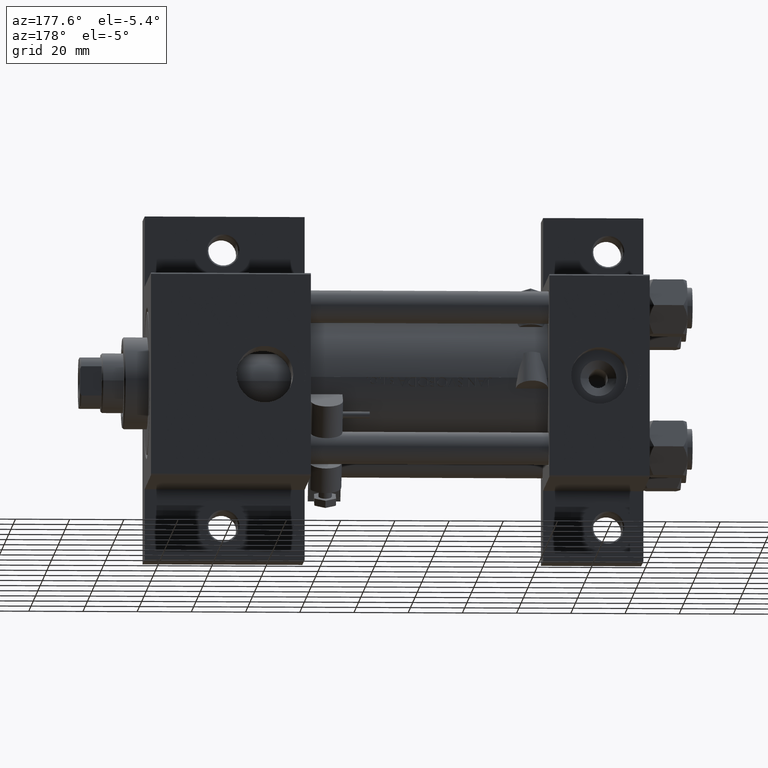
[diagram: clean part render]
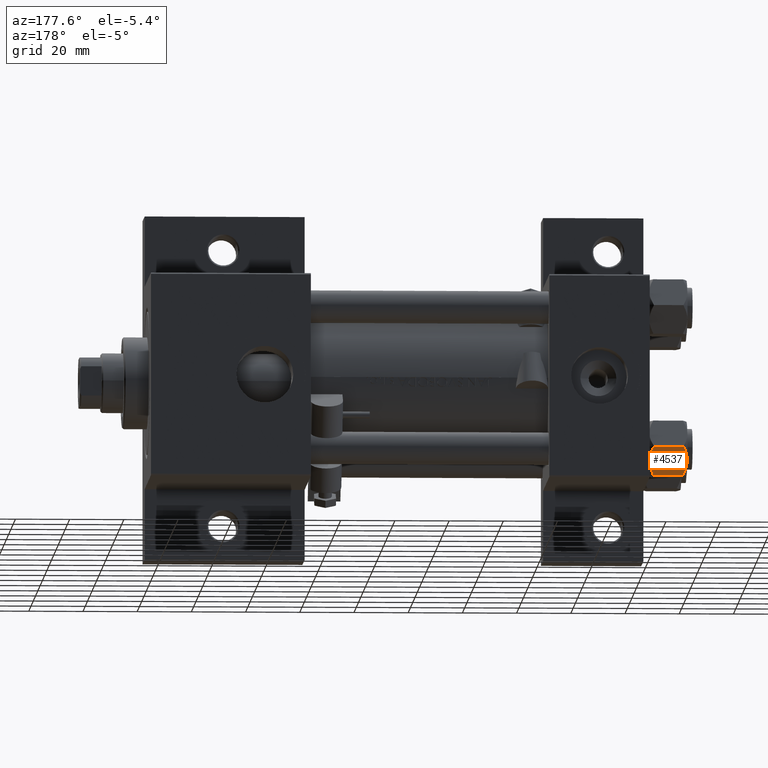
[diagram: same view with one face highlighted and labeled with its STEP entity id]
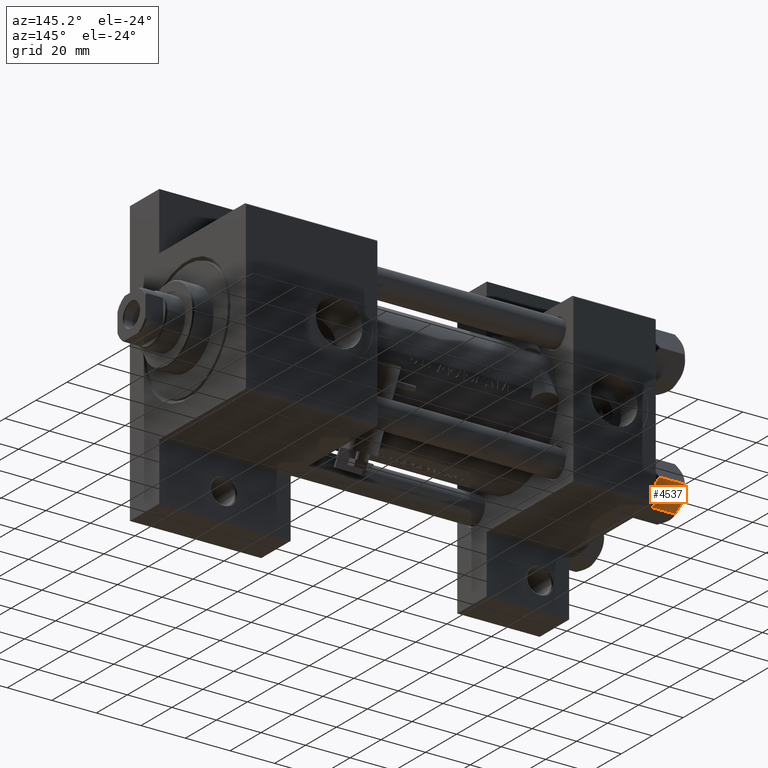
[diagram: same view with one face highlighted and labeled with its STEP entity id]
A machine part, auxiliary view. The second image highlights one B-rep face of the part: STEP entity #4537.
A second angle (auxiliary view) of the same face is appended — the face is thin or edge-on in the first view.
In plain terms, the highlighted planar face has unit normal (0, -0.866, 0.5).
Its self-contained STEP definition (entity closure, byte-faithful):
#942 = VERTEX_POINT ( 'NONE', #43391 ) ;
#1044 = VECTOR ( 'NONE', #38407, 1000.000000000000000 ) ;
#1800 = CARTESIAN_POINT ( 'NONE',  ( -10.69662495661650325, -1.599332489581326122, -13.28854452935654962 ) ) ;
#4214 = CARTESIAN_POINT ( 'NONE',  ( -7.455303369716807182, -7.213466161761382445, -13.69973261901325934 ) ) ;
#4537 = ADVANCED_FACE ( 'NONE', ( #28844 ), #43851, .F. ) ;
#5435 = CARTESIAN_POINT ( 'NONE',  ( -5.810000000000000497, -10.06321519197517844, -14.00000000000000000 ) ) ;
#5474 = CARTESIAN_POINT ( 'NONE',  ( -9.716999946243696229, -3.296092779912219495, -13.84547602999602134 ) ) ;
#8392 = LINE ( 'NONE', #41855, #1044 ) ;
#10140 = DIRECTION ( 'NONE',  ( 0.8660254037844390407, 0.4999999999999995004, 0.000000000000000000 ) ) ;
#10404 = EDGE_CURVE ( 'NONE', #30042, #34489, #39151, .T. ) ;
#10684 = EDGE_CURVE ( 'NONE', #28262, #39590, #37987, .T. ) ;
#11114 = CARTESIAN_POINT ( 'NONE',  ( -8.460569896449618099, -5.472293462311855095, -14.00000000000000355 ) ) ;
#12254 = CARTESIAN_POINT ( 'NONE',  ( -8.715000000000005187, -5.031607595987585668, 0.000000000000000000 ) ) ;
#12332 = DIRECTION ( 'NONE',  ( -0.000000000000000000, -0.000000000000000000, 1.000000000000000000 ) ) ;
#13828 = CARTESIAN_POINT ( 'NONE',  ( -8.715000000000005187, -5.031607595987585668, -14.00000000000000000 ) ) ;
#16545 = CARTESIAN_POINT ( 'NONE',  ( -11.16498164529022041, -0.7881149087337220305, -12.89823354668505040 ) ) ;
#16900 = CARTESIAN_POINT ( 'NONE',  ( -11.61999999999999922, 6.301834029662224111E-15, -1.556784808024812117 ) ) ;
#16985 = CARTESIAN_POINT ( 'NONE',  ( -11.61999999999999922, 6.301834029662224111E-15, -1.556784808024812117 ) ) ;
#17232 = EDGE_LOOP ( 'NONE', ( #29838, #34023, #38435, #36506, #28961, #18788 ) ) ;
#18369 = CARTESIAN_POINT ( 'NONE',  ( -5.810000000000000497, -10.06321519197517844, -1.556784808024815225 ) ) ;
#18788 = ORIENTED_EDGE ( 'NONE', *, *, #25055, .F. ) ;
#19408 = B_SPLINE_CURVE_WITH_KNOTS ( 'NONE', 3,
 ( #30294, #41617, #29814, #4214, #26611, #37919, #11114, #23151 ),
 .UNSPECIFIED., .F., .F.,
 ( 4, 2, 2, 4 ),
 ( 2.544312114906334931E-07, 0.003011550106433545128, 0.004517197944044571388, 0.006022845781655597648 ),
 .UNSPECIFIED. ) ;
#19859 = CARTESIAN_POINT ( 'NONE',  ( -11.16445427487471598, -0.7890283410877912962, -1.101239082899529764 ) ) ;
#22074 = CARTESIAN_POINT ( 'NONE',  ( -7.713000053756306151, -6.767122412062949621, -0.1545239700039825748 ) ) ;
#23151 = CARTESIAN_POINT ( 'NONE',  ( -8.715000000000005187, -5.031607595987585668, -14.00000000000000000 ) ) ;
#23515 = B_SPLINE_CURVE_WITH_KNOTS ( 'NONE', 3,
 ( #45425, #44942, #22074, #30182, #48607, #40771 ),
 .UNSPECIFIED., .F., .F.,
 ( 4, 2, 4 ),
 ( 0.006022845781655587240, 0.009013049135303635023, 0.01200325248895168541 ),
 .UNSPECIFIED. ) ;
#25055 = EDGE_CURVE ( 'NONE', #942, #29723, #26834, .T. ) ;
#25150 = DIRECTION ( 'NONE',  ( -0.4999999999999994449, 0.8660254037844389297, 0.000000000000000000 ) ) ;
#26256 = VECTOR ( 'NONE', #12332, 1000.000000000000000 ) ;
#26611 = CARTESIAN_POINT ( 'NONE',  ( -7.700834831386345058, -6.788193195293090731, -13.80960203119265906 ) ) ;
#26834 = B_SPLINE_CURVE_WITH_KNOTS ( 'NONE', 3,
 ( #13828, #36215, #5474, #1800, #16545, #31805 ),
 .UNSPECIFIED., .F., .F.,
 ( 4, 2, 4 ),
 ( 0.006022845781655597648, 0.009013049135303643697, 0.01200325248895169061 ),
 .UNSPECIFIED. ) ;
#27739 = CARTESIAN_POINT ( 'NONE',  ( -8.715000000000005187, -5.031607595987585668, 0.000000000000000000 ) ) ;
#28262 = VERTEX_POINT ( 'NONE', #16985 ) ;
#28844 = FACE_OUTER_BOUND ( 'NONE', #17232, .T. ) ;
#28961 = ORIENTED_EDGE ( 'NONE', *, *, #34878, .F. ) ;
#29723 = VERTEX_POINT ( 'NONE', #35344 ) ;
#29814 = CARTESIAN_POINT ( 'NONE',  ( -6.731401448974990487, -8.467301068182912616, -13.28585617404753627 ) ) ;
#29838 = ORIENTED_EDGE ( 'NONE', *, *, #39142, .F. ) ;
#30001 = AXIS2_PLACEMENT_3D ( 'NONE', #32292, #10140, #25150 ) ;
#30042 = VERTEX_POINT ( 'NONE', #32510 ) ;
#30182 = CARTESIAN_POINT ( 'NONE',  ( -6.733375043383497349, -8.463882702393840773, -0.7114554706434500497 ) ) ;
#30294 = CARTESIAN_POINT ( 'NONE',  ( -5.810000000000000497, -10.06321519197517844, -12.44321519197518455 ) ) ;
#31434 = CARTESIAN_POINT ( 'NONE',  ( -9.729165168613651105, -3.275021996682077052, -0.1903979688073393906 ) ) ;
#31805 = CARTESIAN_POINT ( 'NONE',  ( -11.61999999999999922, 6.270720075510426383E-15, -12.44321519197518811 ) ) ;
#31922 = CARTESIAN_POINT ( 'NONE',  ( -9.227666995912100489, -4.143642311704119230, -0.03994118060690584476 ) ) ;
#32292 = CARTESIAN_POINT ( 'NONE',  ( -5.810000000000000497, -10.06321519197517844, -14.00000000000000000 ) ) ;
#32510 = CARTESIAN_POINT ( 'NONE',  ( -5.810000000000000497, -10.06321519197517844, -12.44321519197518455 ) ) ;
#34023 = ORIENTED_EDGE ( 'NONE', *, *, #10404, .T. ) ;
#34489 = VERTEX_POINT ( 'NONE', #18369 ) ;
#34878 = EDGE_CURVE ( 'NONE', #29723, #28262, #8392, .T. ) ;
#35344 = CARTESIAN_POINT ( 'NONE',  ( -11.61999999999999922, 6.270720075510426383E-15, -12.44321519197518811 ) ) ;
#36215 = CARTESIAN_POINT ( 'NONE',  ( -9.220295946303432189, -4.156409344131445138, -14.00000000000000711 ) ) ;
#36506 = ORIENTED_EDGE ( 'NONE', *, *, #10684, .F. ) ;
#37919 = CARTESIAN_POINT ( 'NONE',  ( -8.202333004087901003, -5.919572880271046778, -13.96005881939309390 ) ) ;
#37987 = B_SPLINE_CURVE_WITH_KNOTS ( 'NONE', 3,
 ( #16900, #19859, #43478, #43003, #31434, #31922, #46424, #27739 ),
 .UNSPECIFIED., .F., .F.,
 ( 4, 2, 2, 4 ),
 ( 2.544312114899214560E-07, 0.003011550106433539924, 0.004517197944044563582, 0.006022845781655587240 ),
 .UNSPECIFIED. ) ;
#38407 = DIRECTION ( 'NONE',  ( -0.000000000000000000, -0.000000000000000000, 1.000000000000000000 ) ) ;
#38435 = ORIENTED_EDGE ( 'NONE', *, *, #39759, .F. ) ;
#39142 = EDGE_CURVE ( 'NONE', #30042, #942, #19408, .T. ) ;
#39151 = LINE ( 'NONE', #5435, #26256 ) ;
#39590 = VERTEX_POINT ( 'NONE', #12254 ) ;
#39759 = EDGE_CURVE ( 'NONE', #39590, #34489, #23515, .T. ) ;
#40771 = CARTESIAN_POINT ( 'NONE',  ( -5.810000000000000497, -10.06321519197517844, -1.556784808024815225 ) ) ;
#41617 = CARTESIAN_POINT ( 'NONE',  ( -6.265545725125286403, -9.274186850887383926, -12.89876091710047135 ) ) ;
#41855 = CARTESIAN_POINT ( 'NONE',  ( -11.61999999999999922, 6.288644352490894150E-15, -14.00000000000000000 ) ) ;
#43003 = CARTESIAN_POINT ( 'NONE',  ( -9.974696630283188981, -2.849749030213787560, -0.3002673809867339449 ) ) ;
#43391 = CARTESIAN_POINT ( 'NONE',  ( -8.715000000000005187, -5.031607595987585668, -14.00000000000000000 ) ) ;
#43478 = CARTESIAN_POINT ( 'NONE',  ( -10.69859855102501101, -1.595914123792257389, -0.7141438259524618415 ) ) ;
#43851 = PLANE ( 'NONE',  #30001 ) ;
#44942 = CARTESIAN_POINT ( 'NONE',  ( -8.209704053696569304, -5.906805847843719981, 4.553649124439113890E-15 ) ) ;
#45425 = CARTESIAN_POINT ( 'NONE',  ( -8.715000000000005187, -5.031607595987585668, 0.000000000000000000 ) ) ;
#46424 = CARTESIAN_POINT ( 'NONE',  ( -8.969430103550381617, -4.590921729663306472, 4.863663183134191758E-15 ) ) ;
#48607 = CARTESIAN_POINT ( 'NONE',  ( -6.265018354709778414, -9.275100283241449972, -1.101766453314953820 ) ) ;